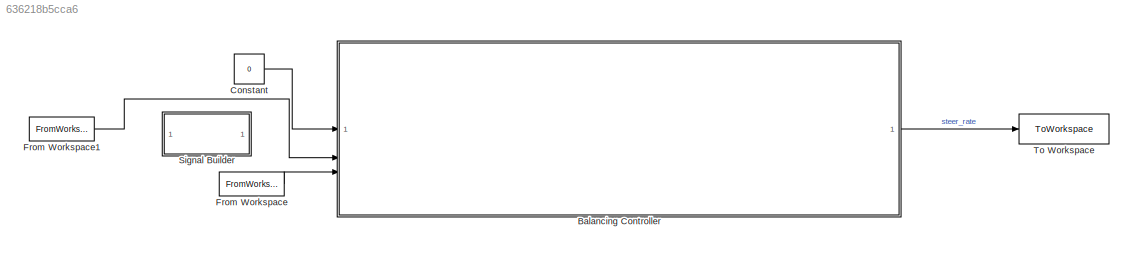
MODEL slx_636218b5cca6
KIND model
CONFIG AbsTol = auto
CONFIG EnableMultiTasking = off
CONFIG FixedStep = auto
CONFIG MaxStep = auto
CONFIG MinStep = auto
CONFIG RelTol = 1e-3
CONFIG SampleTimeConstraint = Unconstrained
CONFIG SolverName = VariableStepAuto
CONFIG StartTime = 0.0
CONFIG StopTime = sim_time-0.02
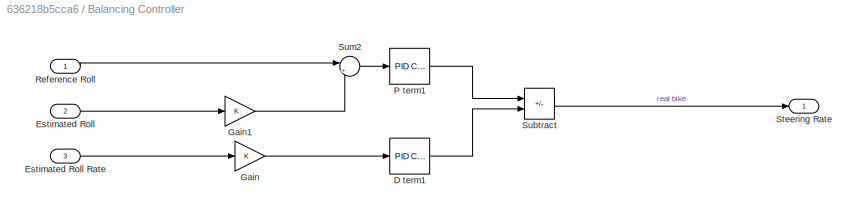
BLOCK [SubSystem] Balancing Controller 
  MinAlgLoopOccurrences = on
  SystemSampleTime = Ts
  TreatAsAtomicUnit = on
BLOCK [Reference] Balancing Controller /D term1  REF=slpidlib/PID Controller
  SourceBlock = slpidlib/PID Controller
  SourceType = PID 1dof
BLOCK [Inport] Balancing Controller /Estimated Roll
  Port = 2
BLOCK [Inport] Balancing Controller /Estimated Roll Rate
  Port = 3
BLOCK [Gain] Balancing Controller /Gain
BLOCK [Gain] Balancing Controller /Gain1
BLOCK [Reference] Balancing Controller /P term1  REF=slpidlib/PID Controller
  SourceBlock = slpidlib/PID Controller
  SourceType = PID 1dof
BLOCK [Inport] Balancing Controller /Reference Roll
BLOCK [Outport] Balancing Controller /Steering Rate
BLOCK [Sum] Balancing Controller /Subtract
  IconShape = rectangular
  Inputs = +-
BLOCK [Sum] Balancing Controller /Sum2
  Inputs = |+-
BLOCK [Constant] Constant
  Value = 0
BLOCK [FromWorkspace] From Workspace
  SampleTime = Ts
  VariableName = [data_lab.Time roll_rate_est]
BLOCK [FromWorkspace] From Workspace1
  SampleTime = Ts
  VariableName = [data_lab.Time roll_est]
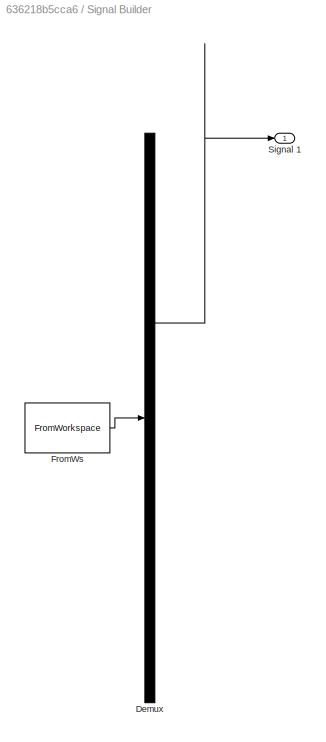
BLOCK [SubSystem] Signal Builder
  ClipboardFcn = sigbuilder_block('clipboard');
  CloseFcn = sigbuilder_block('close');
  ContinueFcn = sigbuilder_block('continue');
  CopyFcn = sigbuilder_block('copy');
  DeleteFcn = sigbuilder_block('delete');
  LoadFcn = sigbuilder_block('load');
  MaskHideContents = on
  ModelCloseFcn = sigbuilder_block('modelClose');
  NameChangeFcn = sigbuilder_block('namechange');
  OpenFcn = sigbuilder_block('open',[437.6 199.2 550.4 400 ]);
  PauseFcn = sigbuilder_block('pause');
  PreSaveFcn = sigbuilder_block('preSave');
  StartFcn = sigbuilder_block('start');
  StopFcn = sigbuilder_block('stop');
  Tag = STV Subsys
BLOCK [Demux] Signal Builder/Demux
  DisplayOption = none
  Outputs = 1
  Tag = STV Demux
BLOCK [FromWorkspace] Signal Builder/FromWs
  Tag = STV FromWs
  VariableName = tuvar
BLOCK [Outport] Signal Builder/Signal 1
  Tag = STV Outport
BLOCK [ToWorkspace] To Workspace
  FixptAsFi = on
  MaxDataPoints = inf
  SampleTime = -1
  SaveFormat = Timeseries
  VariableName = steer_rate_sim
LINE Balancing Controller /D term1:1 -> Balancing Controller /Subtract:2
LINE Balancing Controller /Estimated Roll Rate:1 -> Balancing Controller /Gain:1
LINE Balancing Controller /Estimated Roll:1 -> Balancing Controller /Gain1:1
LINE Balancing Controller /Gain1:1 -> Balancing Controller /Sum2:2
LINE Balancing Controller /Gain:1 -> Balancing Controller /D term1:1
LINE Balancing Controller /P term1:1 -> Balancing Controller /Subtract:1
LINE Balancing Controller /Reference Roll:1 -> Balancing Controller /Sum2:1
LINE Balancing Controller /Subtract:1 -> Balancing Controller /Steering Rate:1
LINE Balancing Controller /Sum2:1 -> Balancing Controller /P term1:1
LINE Balancing Controller :1 -> To Workspace:1
LINE Constant:1 -> Balancing Controller :1
LINE From Workspace1:1 -> Balancing Controller :2
LINE From Workspace:1 -> Balancing Controller :3
